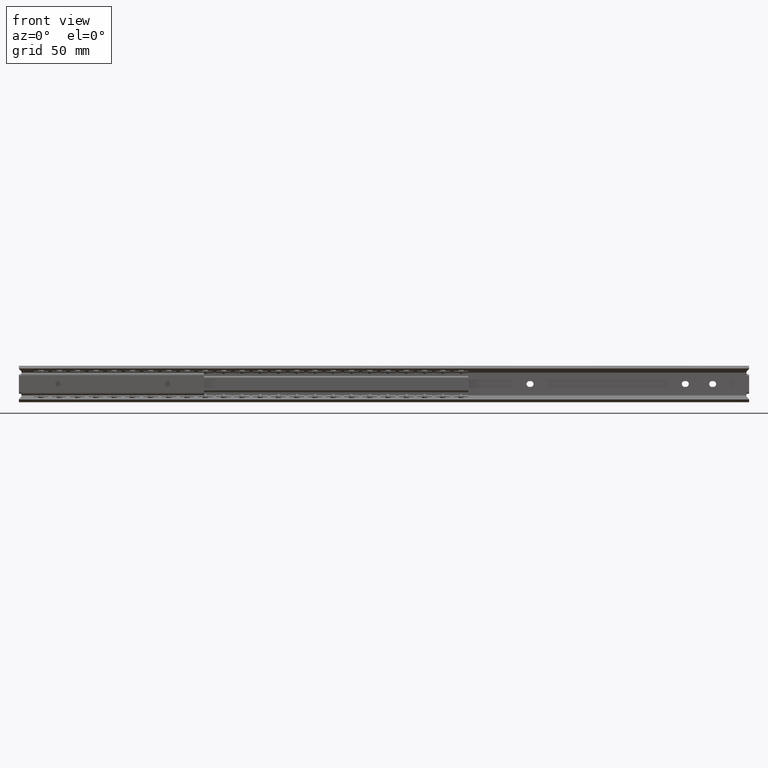
[diagram: clean part render]
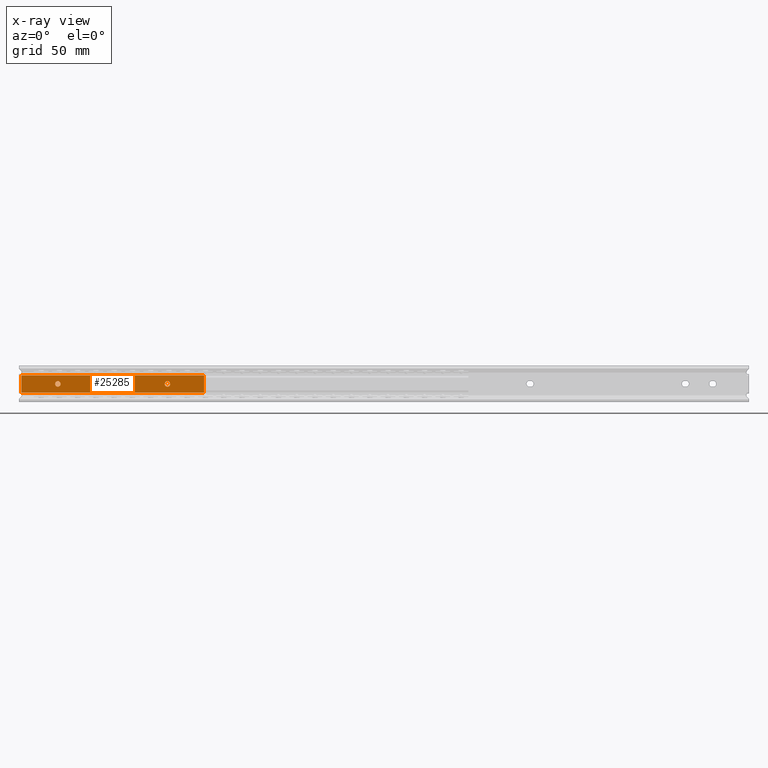
[diagram: x-ray — body ghosted, one internal face saturated and labeled with its STEP entity id]
A machine part, front view, then the same camera in x-ray: the body is ghosted and one INTERNAL B-rep face — a face not visible from any outside direction — is saturated and labeled: STEP entity #25285.
In plain terms, the highlighted face is a freeform B-spline surface patch.
Its self-contained STEP definition (entity closure, byte-faithful):
#24547=CARTESIAN_POINT('',(79.910485710459696,-6.800000000000000,0.177051352028775));
#24548=VERTEX_POINT('',#24547);
#24549=CARTESIAN_POINT('',(81.400000000000006,-6.800000000000000,-1.500000000000000));
#24550=VERTEX_POINT('',#24549);
#24551=CARTESIAN_POINT('',(79.910485710459696,-6.800000000000000,0.177051352028774));
#24552=CARTESIAN_POINT('',(79.899999999999991,-6.800000000000000,0.088836179521963));
#24553=CARTESIAN_POINT('',(79.900000000000006,-6.800000000000000,0.0));
#24554=CARTESIAN_POINT('',(79.900000000000006,-6.800000000000002,-1.500000000000000));
#24555=CARTESIAN_POINT('',(81.400000000000006,-6.800000000000000,-1.500000000000000));
#24563=(BOUNDED_CURVE()B_SPLINE_CURVE(2,(#24551,#24552,#24553,#24554,#24555),.UNSPECIFIED.,.F.,.U.)B_SPLINE_CURVE_WITH_KNOTS((3,2,3),(0.729562473505742,0.750000000000000,1.0),.UNSPECIFIED.)CURVE()GEOMETRIC_REPRESENTATION_ITEM()RATIONAL_B_SPLINE_CURVE((0.956026754168477,0.976055948322046,1.0,0.707106781186548,1.0))REPRESENTATION_ITEM(''));
#24564=EDGE_CURVE('',#24548,#24550,#24563,.T.);
#24605=CARTESIAN_POINT('',(82.897202197632325,-6.799999999999999,-0.091572809310208));
#24606=VERTEX_POINT('',#24605);
#24612=CARTESIAN_POINT('',(81.400000000000006,-6.800000000000000,-1.500000000000000));
#24613=CARTESIAN_POINT('',(82.811059100343584,-6.800000000000001,-1.500000000000000));
#24614=CARTESIAN_POINT('',(82.897202197632325,-6.799999999999999,-0.091572809310208));
#24622=(BOUNDED_CURVE()B_SPLINE_CURVE(2,(#24612,#24613,#24614),.UNSPECIFIED.,.F.,.U.)B_SPLINE_CURVE_WITH_KNOTS((3,3),(0.0,0.239332962240142),.UNSPECIFIED.)CURVE()GEOMETRIC_REPRESENTATION_ITEM()RATIONAL_B_SPLINE_CURVE((1.0,0.719603993285305,0.976072041669288))REPRESENTATION_ITEM(''));
#24623=EDGE_CURVE('',#24550,#24606,#24622,.T.);
#24646=CARTESIAN_POINT('',(81.400000000000006,-6.800000000000000,1.500000000000000));
#24647=VERTEX_POINT('',#24646);
#24648=CARTESIAN_POINT('',(81.400000000000006,-6.800000000000000,1.500000000000000));
#24649=CARTESIAN_POINT('',(80.067738211151578,-6.800000000000001,1.500000000000000));
#24650=CARTESIAN_POINT('',(79.910485710459696,-6.800000000000000,0.177051352028774));
#24658=(BOUNDED_CURVE()B_SPLINE_CURVE(2,(#24648,#24649,#24650),.UNSPECIFIED.,.F.,.U.)B_SPLINE_CURVE_WITH_KNOTS((3,3),(0.500000000000000,0.729562473505742),.UNSPECIFIED.)CURVE()GEOMETRIC_REPRESENTATION_ITEM()RATIONAL_B_SPLINE_CURVE((1.0,0.731050832864501,0.956026754168477))REPRESENTATION_ITEM(''));
#24659=EDGE_CURVE('',#24647,#24548,#24658,.T.);
#24661=CARTESIAN_POINT('',(82.897202197632325,-6.799999999999999,-0.091572809310208));
#24662=CARTESIAN_POINT('',(82.900000000000006,-6.799999999999999,-0.045829144955829));
#24663=CARTESIAN_POINT('',(82.900000000000006,-6.800000000000000,0.0));
#24664=CARTESIAN_POINT('',(82.900000000000006,-6.800000000000002,1.500000000000000));
#24665=CARTESIAN_POINT('',(81.400000000000006,-6.800000000000000,1.500000000000000));
#24673=(BOUNDED_CURVE()B_SPLINE_CURVE(2,(#24661,#24662,#24663,#24664,#24665),.UNSPECIFIED.,.F.,.U.)B_SPLINE_CURVE_WITH_KNOTS((3,2,3),(0.239332962240142,0.250000000000000,0.500000000000000),.UNSPECIFIED.)CURVE()GEOMETRIC_REPRESENTATION_ITEM()RATIONAL_B_SPLINE_CURVE((0.976072041669288,0.987502787901242,1.0,0.707106781186548,1.0))REPRESENTATION_ITEM(''));
#24674=EDGE_CURVE('',#24606,#24647,#24673,.T.);
#24733=CARTESIAN_POINT('',(19.910485710459689,-6.800000000000001,0.177051352028773));
#24734=VERTEX_POINT('',#24733);
#24735=CARTESIAN_POINT('',(21.399999999999999,-6.800000000000000,-1.500000000000000));
#24736=VERTEX_POINT('',#24735);
#24737=CARTESIAN_POINT('',(19.910485710459685,-6.800000000000001,0.177051352028773));
#24738=CARTESIAN_POINT('',(19.899999999999991,-6.800000000000000,0.088836179521962));
#24739=CARTESIAN_POINT('',(19.899999999999999,-6.800000000000000,0.0));
#24740=CARTESIAN_POINT('',(19.900000000000006,-6.800000000000002,-1.500000000000000));
#24741=CARTESIAN_POINT('',(21.399999999999999,-6.800000000000000,-1.500000000000000));
#24749=(BOUNDED_CURVE()B_SPLINE_CURVE(2,(#24737,#24738,#24739,#24740,#24741),.UNSPECIFIED.,.F.,.U.)B_SPLINE_CURVE_WITH_KNOTS((3,2,3),(0.729562473505742,0.750000000000000,1.0),.UNSPECIFIED.)CURVE()GEOMETRIC_REPRESENTATION_ITEM()RATIONAL_B_SPLINE_CURVE((0.956026754168478,0.976055948322047,1.0,0.707106781186548,1.0))REPRESENTATION_ITEM(''));
#24750=EDGE_CURVE('',#24734,#24736,#24749,.T.);
#24791=CARTESIAN_POINT('',(22.897202197632311,-6.800000000000000,-0.091572809310208));
#24792=VERTEX_POINT('',#24791);
#24798=CARTESIAN_POINT('',(21.399999999999999,-6.800000000000000,-1.500000000000000));
#24799=CARTESIAN_POINT('',(22.811059100343577,-6.800000000000001,-1.500000000000000));
#24800=CARTESIAN_POINT('',(22.897202197632311,-6.800000000000000,-0.091572809310208));
#24808=(BOUNDED_CURVE()B_SPLINE_CURVE(2,(#24798,#24799,#24800),.UNSPECIFIED.,.F.,.U.)B_SPLINE_CURVE_WITH_KNOTS((3,3),(0.0,0.239332962240142),.UNSPECIFIED.)CURVE()GEOMETRIC_REPRESENTATION_ITEM()RATIONAL_B_SPLINE_CURVE((1.0,0.719603993285305,0.976072041669288))REPRESENTATION_ITEM(''));
#24809=EDGE_CURVE('',#24736,#24792,#24808,.T.);
#24832=CARTESIAN_POINT('',(21.399999999999999,-6.800000000000000,1.500000000000000));
#24833=VERTEX_POINT('',#24832);
#24834=CARTESIAN_POINT('',(21.399999999999999,-6.800000000000000,1.500000000000000));
#24835=CARTESIAN_POINT('',(20.067738211151557,-6.800000000000001,1.500000000000000));
#24836=CARTESIAN_POINT('',(19.910485710459682,-6.800000000000001,0.177051352028773));
#24844=(BOUNDED_CURVE()B_SPLINE_CURVE(2,(#24834,#24835,#24836),.UNSPECIFIED.,.F.,.U.)B_SPLINE_CURVE_WITH_KNOTS((3,3),(0.500000000000000,0.729562473505742),.UNSPECIFIED.)CURVE()GEOMETRIC_REPRESENTATION_ITEM()RATIONAL_B_SPLINE_CURVE((1.0,0.731050832864501,0.956026754168477))REPRESENTATION_ITEM(''));
#24845=EDGE_CURVE('',#24833,#24734,#24844,.T.);
#24847=CARTESIAN_POINT('',(22.897202197632318,-6.800000000000001,-0.091572809310208));
#24848=CARTESIAN_POINT('',(22.899999999999999,-6.800000000000001,-0.045829144955829));
#24849=CARTESIAN_POINT('',(22.899999999999999,-6.800000000000000,0.0));
#24850=CARTESIAN_POINT('',(22.899999999999999,-6.800000000000002,1.500000000000000));
#24851=CARTESIAN_POINT('',(21.399999999999999,-6.800000000000000,1.500000000000000));
#24859=(BOUNDED_CURVE()B_SPLINE_CURVE(2,(#24847,#24848,#24849,#24850,#24851),.UNSPECIFIED.,.F.,.U.)B_SPLINE_CURVE_WITH_KNOTS((3,2,3),(0.239332962240142,0.250000000000000,0.500000000000000),.UNSPECIFIED.)CURVE()GEOMETRIC_REPRESENTATION_ITEM()RATIONAL_B_SPLINE_CURVE((0.976072041669288,0.987502787901242,1.0,0.707106781186548,1.0))REPRESENTATION_ITEM(''));
#24860=EDGE_CURVE('',#24792,#24833,#24859,.T.);
#24919=CARTESIAN_POINT('',(1.400000000000068,-6.800000000000000,4.641039999999910));
#24920=VERTEX_POINT('',#24919);
#24936=CARTESIAN_POINT('',(1.400000000000068,-6.800000000000000,-4.641040000000000));
#24937=VERTEX_POINT('',#24936);
#24938=CARTESIAN_POINT('',(1.400000000000068,-6.800000000000000,-4.641040000000000));
#24939=CARTESIAN_POINT('',(1.400000000000068,-6.800000000000000,4.641039999999910));
#24940=QUASI_UNIFORM_CURVE('',1,(#24938,#24939),.UNSPECIFIED.,.F.,.U.);
#24941=EDGE_CURVE('',#24937,#24920,#24940,.T.);
#25183=CARTESIAN_POINT('',(101.400000000000010,-6.800000000000000,-4.641040000000000));
#25184=VERTEX_POINT('',#25183);
#25200=CARTESIAN_POINT('',(101.400000000000010,-6.800000000000000,4.641039999999910));
#25201=VERTEX_POINT('',#25200);
#25202=CARTESIAN_POINT('',(101.400000000000010,-6.800000000000000,-4.641040000000000));
#25203=CARTESIAN_POINT('',(101.400000000000010,-6.800000000000000,4.641039999999910));
#25204=QUASI_UNIFORM_CURVE('',1,(#25202,#25203),.UNSPECIFIED.,.F.,.U.);
#25205=EDGE_CURVE('',#25184,#25201,#25204,.T.);
#25250=CARTESIAN_POINT('',(101.400000000000010,-6.800000000000000,4.641039999999910));
#25251=CARTESIAN_POINT('',(1.400000000000068,-6.800000000000000,4.641039999999910));
#25252=QUASI_UNIFORM_CURVE('',1,(#25250,#25251),.UNSPECIFIED.,.F.,.U.);
#25253=EDGE_CURVE('',#25201,#24920,#25252,.T.);
#25258=CARTESIAN_POINT('',(-3.594999806180518,-6.800000000000000,5.104679757713797));
#25259=CARTESIAN_POINT('',(-3.594999806180518,-6.800000000000000,-5.104679425760839));
#25260=CARTESIAN_POINT('',(106.395002488389590,-6.800000000000000,5.104679757713797));
#25261=CARTESIAN_POINT('',(106.395002488389590,-6.800000000000000,-5.104679425760839));
#25262=B_SPLINE_SURFACE_WITH_KNOTS('',1,1,((#25258,#25260),(#25259,#25261)),.UNSPECIFIED.,.F.,.F.,.U.,(2,2),(2,2),(0.0,10.209359183474641),(0.0,109.990002294570100),.UNSPECIFIED.);
#25263=ORIENTED_EDGE('',*,*,#24941,.T.);
#25264=ORIENTED_EDGE('',*,*,#25253,.F.);
#25265=ORIENTED_EDGE('',*,*,#25205,.F.);
#25266=CARTESIAN_POINT('',(101.400000000000010,-6.800000000000000,-4.641040000000000));
#25267=CARTESIAN_POINT('',(1.400000000000068,-6.800000000000000,-4.641040000000000));
#25268=QUASI_UNIFORM_CURVE('',1,(#25266,#25267),.UNSPECIFIED.,.F.,.U.);
#25269=EDGE_CURVE('',#25184,#24937,#25268,.T.);
#25270=ORIENTED_EDGE('',*,*,#25269,.T.);
#25271=EDGE_LOOP('',(#25263,#25264,#25265,#25270));
#25272=FACE_OUTER_BOUND('',#25271,.T.);
#25273=ORIENTED_EDGE('',*,*,#24809,.T.);
#25274=ORIENTED_EDGE('',*,*,#24860,.T.);
#25275=ORIENTED_EDGE('',*,*,#24845,.T.);
#25276=ORIENTED_EDGE('',*,*,#24750,.T.);
#25277=EDGE_LOOP('',(#25273,#25274,#25275,#25276));
#25278=FACE_BOUND('',#25277,.T.);
#25279=ORIENTED_EDGE('',*,*,#24623,.T.);
#25280=ORIENTED_EDGE('',*,*,#24674,.T.);
#25281=ORIENTED_EDGE('',*,*,#24659,.T.);
#25282=ORIENTED_EDGE('',*,*,#24564,.T.);
#25283=EDGE_LOOP('',(#25279,#25280,#25281,#25282));
#25284=FACE_BOUND('',#25283,.T.);
#25285=ADVANCED_FACE('',(#25272,#25278,#25284),#25262,.F.);